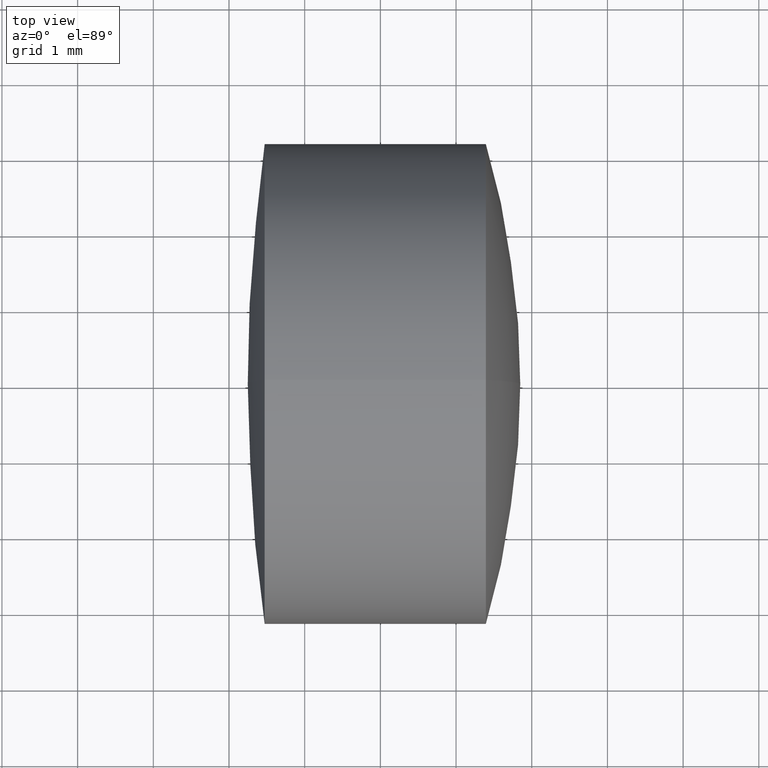
[diagram: clean part render]
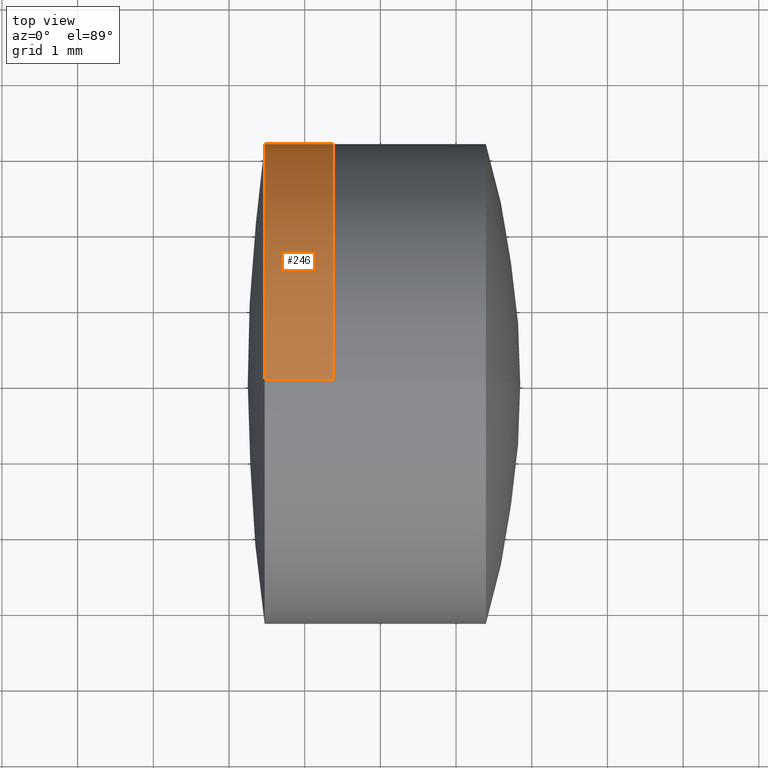
[diagram: same view with one face highlighted and labeled with its STEP entity id]
A machine part, top view. The second image highlights one B-rep face of the part: STEP entity #246.
In plain terms, the highlighted cylindrical surface (partial cylindrical patch) has radius 3.175 mm, axis along (-1, -0, -0).
Its self-contained STEP definition (entity closure, byte-faithful):
#2 = LINE ( 'NONE', #154, #38 ) ;
#10 = ORIENTED_EDGE ( 'NONE', *, *, #323, .T. ) ;
#19 = AXIS2_PLACEMENT_3D ( 'NONE', #120, #59, #186 ) ;
#38 = VECTOR ( 'NONE', #102, 1000.000000000000000 ) ;
#51 = CIRCLE ( 'NONE', #283, 3.174999999999999800 ) ;
#59 = DIRECTION ( 'NONE',  ( -1.000000000000000000, -0.0000000000000000000, -0.0000000000000000000 ) ) ;
#64 = CARTESIAN_POINT ( 'NONE',  ( 1.471096379993142000, 0.0000000000000000000, 3.174999999999998500 ) ) ;
#66 = EDGE_CURVE ( 'NONE', #167, #299, #144, .T. ) ;
#68 = CARTESIAN_POINT ( 'NONE',  ( 1.471096379993142000, 3.888253587292844600E-016, -3.174999999999998500 ) ) ;
#75 = EDGE_LOOP ( 'NONE', ( #235, #10, #147, #110 ) ) ;
#77 = LINE ( 'NONE', #81, #326 ) ;
#81 = CARTESIAN_POINT ( 'NONE',  ( -0.8160621761658039000, 0.0000000000000000000, 3.174999999999999800 ) ) ;
#102 = DIRECTION ( 'NONE',  ( -1.000000000000000000, -0.0000000000000000000, -0.0000000000000000000 ) ) ;
#103 = AXIS2_PLACEMENT_3D ( 'NONE', #160, #292, #170 ) ;
#109 = CARTESIAN_POINT ( 'NONE',  ( 2.377028588039097600, 0.0000000000000000000, 0.0000000000000000000 ) ) ;
#110 = ORIENTED_EDGE ( 'NONE', *, *, #112, .F. ) ;
#112 = EDGE_CURVE ( 'NONE', #335, #167, #77, .T. ) ;
#120 = CARTESIAN_POINT ( 'NONE',  ( 1.471096379993141400, 0.0000000000000000000, 0.0000000000000000000 ) ) ;
#144 = CIRCLE ( 'NONE', #19, 3.174999999999999800 ) ;
#147 = ORIENTED_EDGE ( 'NONE', *, *, #66, .F. ) ;
#154 = CARTESIAN_POINT ( 'NONE',  ( -0.8160621761658039000, 3.888253587292846100E-016, -3.174999999999999800 ) ) ;
#160 = CARTESIAN_POINT ( 'NONE',  ( -0.8160621761658039000, 0.0000000000000000000, 0.0000000000000000000 ) ) ;
#167 = VERTEX_POINT ( 'NONE', #64 ) ;
#170 = DIRECTION ( 'NONE',  ( 0.0000000000000000000, 0.0000000000000000000, 1.000000000000000000 ) ) ;
#186 = DIRECTION ( 'NONE',  ( 0.0000000000000000000, 0.0000000000000000000, 1.000000000000000000 ) ) ;
#227 = DIRECTION ( 'NONE',  ( -1.000000000000000000, -0.0000000000000000000, -0.0000000000000000000 ) ) ;
#235 = ORIENTED_EDGE ( 'NONE', *, *, #275, .T. ) ;
#246 = ADVANCED_FACE ( 'NONE', ( #288 ), #317, .T. ) ;
#253 = CARTESIAN_POINT ( 'NONE',  ( 2.377028588039097600, 3.888253587292846100E-016, -3.174999999999999800 ) ) ;
#264 = CARTESIAN_POINT ( 'NONE',  ( 2.377028588039097600, 0.0000000000000000000, 3.174999999999999800 ) ) ;
#275 = EDGE_CURVE ( 'NONE', #335, #312, #51, .T. ) ;
#283 = AXIS2_PLACEMENT_3D ( 'NONE', #109, #227, #285 ) ;
#285 = DIRECTION ( 'NONE',  ( 0.0000000000000000000, 0.0000000000000000000, 1.000000000000000000 ) ) ;
#288 = FACE_OUTER_BOUND ( 'NONE', #75, .T. ) ;
#292 = DIRECTION ( 'NONE',  ( -1.000000000000000000, -0.0000000000000000000, -0.0000000000000000000 ) ) ;
#299 = VERTEX_POINT ( 'NONE', #68 ) ;
#312 = VERTEX_POINT ( 'NONE', #253 ) ;
#317 = CYLINDRICAL_SURFACE ( 'NONE', #103, 3.174999999999999800 ) ;
#323 = EDGE_CURVE ( 'NONE', #312, #299, #2, .T. ) ;
#325 = DIRECTION ( 'NONE',  ( -1.000000000000000000, -0.0000000000000000000, -0.0000000000000000000 ) ) ;
#326 = VECTOR ( 'NONE', #325, 1000.000000000000000 ) ;
#335 = VERTEX_POINT ( 'NONE', #264 ) ;